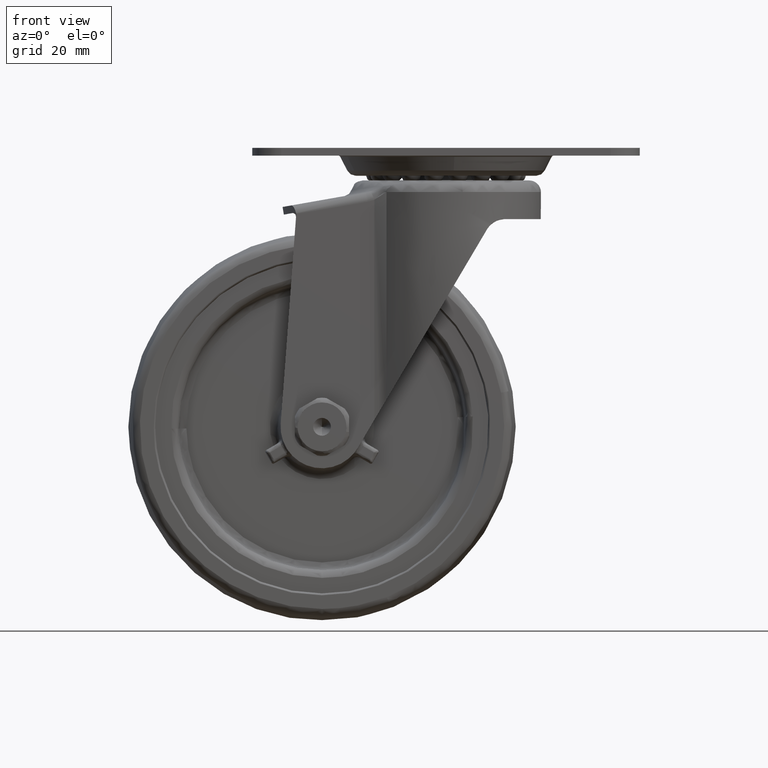
[diagram: clean part render]
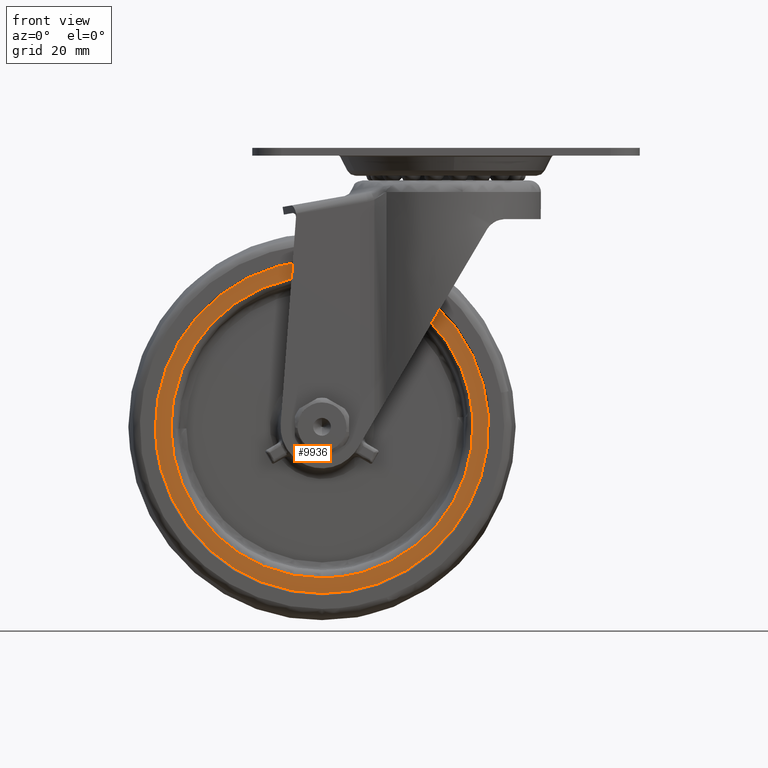
[diagram: same view with one face highlighted and labeled with its STEP entity id]
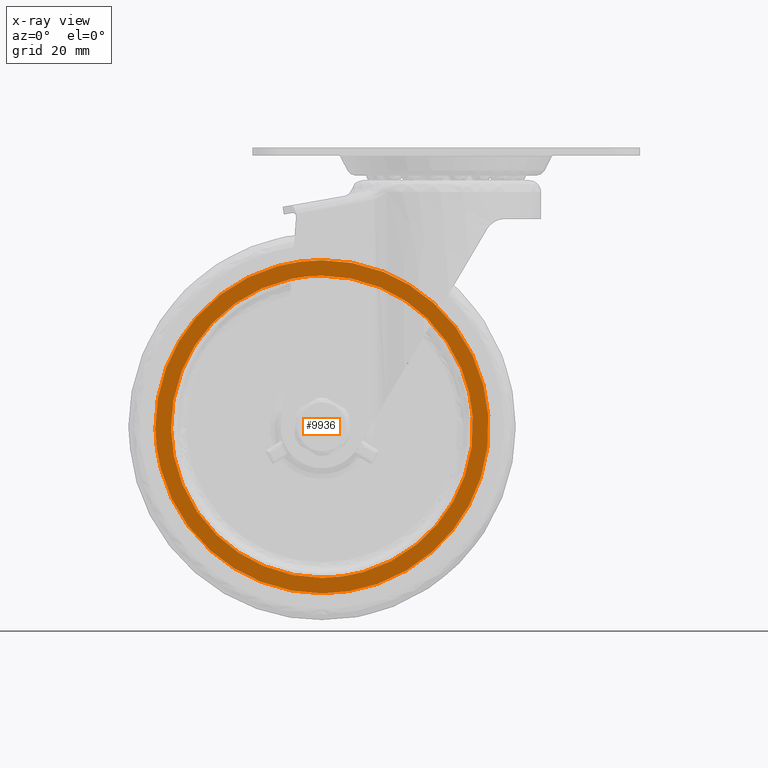
[diagram: x-ray of the same camera — body ghosted, the highlighted face saturated]
A machine part, front view. The second image highlights one B-rep face of the part: STEP entity #9936.
The next image is the same camera in x-ray: the body ghosted, the highlighted face saturated — about 0% of this face is hidden behind the body in this view.
In plain terms, the highlighted face is a freeform B-spline surface patch.
Its self-contained STEP definition (entity closure, byte-faithful):
#2966=CARTESIAN_POINT('',(10.895323975137750,-13.000000010104170,-67.001470182243978));
#2967=VERTEX_POINT('',#2966);
#2981=CARTESIAN_POINT('',(-32.0,-13.0,-113.0));
#2982=VERTEX_POINT('',#2981);
#2983=CARTESIAN_POINT('',(10.895323975137751,-13.000000010104177,-67.001470182243978));
#2984=CARTESIAN_POINT('',(10.999999999999996,-12.999999999999996,-68.498908017375371));
#2985=CARTESIAN_POINT('',(11.0,-13.0,-70.0));
#2986=CARTESIAN_POINT('',(10.999999999999996,-13.000000000000002,-113.0));
#2987=CARTESIAN_POINT('',(-32.0,-13.0,-113.0));
#2995=(BOUNDED_CURVE()B_SPLINE_CURVE(2,(#2983,#2984,#2985,#2986,#2987),.UNSPECIFIED.,.F.,.U.)B_SPLINE_CURVE_WITH_KNOTS((3,2,3),(0.237833686535038,0.250000000000000,0.500000000000000),.UNSPECIFIED.)CURVE()GEOMETRIC_REPRESENTATION_ITEM()RATIONAL_B_SPLINE_CURVE((0.972879876386863,0.985746277152616,1.0,0.707106781186548,1.0))REPRESENTATION_ITEM(''));
#2996=EDGE_CURVE('',#2967,#2982,#2995,.T.);
#2998=CARTESIAN_POINT('',(-74.996604900763671,-13.000000010046300,-70.540339715017154));
#2999=VERTEX_POINT('',#2998);
#3000=CARTESIAN_POINT('',(-32.0,-13.0,-113.0));
#3001=CARTESIAN_POINT('',(-74.463012985949334,-13.000000000000002,-113.0));
#3002=CARTESIAN_POINT('',(-74.996604900763671,-13.000000010046291,-70.540339715017154));
#3010=(BOUNDED_CURVE()B_SPLINE_CURVE(2,(#3000,#3001,#3002),.UNSPECIFIED.,.F.,.U.)B_SPLINE_CURVE_WITH_KNOTS((3,3),(0.500000000000000,0.747784295921458),.UNSPECIFIED.)CURVE()GEOMETRIC_REPRESENTATION_ITEM()RATIONAL_B_SPLINE_CURVE((1.0,0.709702639984556,0.994854295643391))REPRESENTATION_ITEM(''));
#3011=EDGE_CURVE('',#2982,#2999,#3010,.T.);
#3098=CARTESIAN_POINT('',(-32.0,-13.0,-27.000000000000011));
#3099=VERTEX_POINT('',#3098);
#3100=CARTESIAN_POINT('',(-74.996604900763671,-13.000000010046300,-70.540339715017154));
#3101=CARTESIAN_POINT('',(-75.0,-13.000000000000002,-70.270180523684260));
#3102=CARTESIAN_POINT('',(-75.0,-13.0,-70.0));
#3103=CARTESIAN_POINT('',(-75.000000000000014,-13.000000000000002,-27.000000000000011));
#3104=CARTESIAN_POINT('',(-32.0,-13.0,-27.000000000000011));
#3112=(BOUNDED_CURVE()B_SPLINE_CURVE(2,(#3100,#3101,#3102,#3103,#3104),.UNSPECIFIED.,.F.,.U.)B_SPLINE_CURVE_WITH_KNOTS((3,2,3),(0.747784295921458,0.750000000000000,1.0),.UNSPECIFIED.)CURVE()GEOMETRIC_REPRESENTATION_ITEM()RATIONAL_B_SPLINE_CURVE((0.994854295643391,0.997404141201991,1.0,0.707106781186548,1.0))REPRESENTATION_ITEM(''));
#3113=EDGE_CURVE('',#2999,#3099,#3112,.T.);
#3115=CARTESIAN_POINT('',(-32.0,-13.0,-27.000000000000011));
#3116=CARTESIAN_POINT('',(8.099084432442146,-13.000000000000002,-27.000000000000011));
#3117=CARTESIAN_POINT('',(10.895323975137751,-13.000000010104177,-67.001470182243978));
#3125=(BOUNDED_CURVE()B_SPLINE_CURVE(2,(#3115,#3116,#3117),.UNSPECIFIED.,.F.,.U.)B_SPLINE_CURVE_WITH_KNOTS((3,3),(0.0,0.237833686535038),.UNSPECIFIED.)CURVE()GEOMETRIC_REPRESENTATION_ITEM()RATIONAL_B_SPLINE_CURVE((1.0,0.721360504033932,0.972879876386863))REPRESENTATION_ITEM(''));
#3126=EDGE_CURVE('',#3099,#2967,#3125,.T.);
#3161=CARTESIAN_POINT('',(6.904459743385303,-13.0,-67.280445237717473));
#3162=VERTEX_POINT('',#3161);
#3163=CARTESIAN_POINT('',(-32.0,-13.0,-108.999397000000000));
#3164=VERTEX_POINT('',#3163);
#3165=CARTESIAN_POINT('',(6.904459743385303,-12.999999999999996,-67.280445237717473));
#3166=CARTESIAN_POINT('',(6.999396999999997,-13.000000000000002,-68.638565530792590));
#3167=CARTESIAN_POINT('',(6.999396999999997,-13.0,-70.0));
#3168=CARTESIAN_POINT('',(6.999396999999997,-13.0,-108.999397000000000));
#3169=CARTESIAN_POINT('',(-32.0,-13.0,-108.999397000000000));
#3177=(BOUNDED_CURVE()B_SPLINE_CURVE(2,(#3165,#3166,#3167,#3168,#3169),.UNSPECIFIED.,.F.,.U.)B_SPLINE_CURVE_WITH_KNOTS((3,2,3),(0.237833686532575,0.250000000000000,0.500000000000000),.UNSPECIFIED.)CURVE()GEOMETRIC_REPRESENTATION_ITEM()RATIONAL_B_SPLINE_CURVE((0.972879876381653,0.985746277149730,1.0,0.707106781186547,1.0))REPRESENTATION_ITEM(''));
#3178=EDGE_CURVE('',#3162,#3164,#3177,.T.);
#3197=CARTESIAN_POINT('',(-70.996317769842847,-13.0,-70.490067978281729));
#3198=VERTEX_POINT('',#3197);
#3212=CARTESIAN_POINT('',(-32.0,-13.0,-108.999397000000000));
#3213=CARTESIAN_POINT('',(-70.512369796346476,-13.000000000000002,-108.999396999999990));
#3214=CARTESIAN_POINT('',(-70.996317769842847,-13.000000000000002,-70.490067978281729));
#3222=(BOUNDED_CURVE()B_SPLINE_CURVE(2,(#3212,#3213,#3214),.UNSPECIFIED.,.F.,.U.)B_SPLINE_CURVE_WITH_KNOTS((3,3),(0.500000000000000,0.747784295920153),.UNSPECIFIED.)CURVE()GEOMETRIC_REPRESENTATION_ITEM()RATIONAL_B_SPLINE_CURVE((1.0,0.709702639986086,0.994854295640386))REPRESENTATION_ITEM(''));
#3223=EDGE_CURVE('',#3164,#3198,#3222,.T.);
#3251=CARTESIAN_POINT('',(-32.0,-13.0,-31.000603000000009));
#3252=VERTEX_POINT('',#3251);
#3253=CARTESIAN_POINT('',(-32.0,-13.0,-31.000603000000009));
#3254=CARTESIAN_POINT('',(4.368374723136736,-13.000000000000002,-31.000603000000009));
#3255=CARTESIAN_POINT('',(6.904459743385304,-13.000000000000005,-67.280445237717473));
#3263=(BOUNDED_CURVE()B_SPLINE_CURVE(2,(#3253,#3254,#3255),.UNSPECIFIED.,.F.,.U.)B_SPLINE_CURVE_WITH_KNOTS((3,3),(0.0,0.237833686532575),.UNSPECIFIED.)CURVE()GEOMETRIC_REPRESENTATION_ITEM()RATIONAL_B_SPLINE_CURVE((1.0,0.721360504036817,0.972879876381654))REPRESENTATION_ITEM(''));
#3264=EDGE_CURVE('',#3252,#3162,#3263,.T.);
#3266=CARTESIAN_POINT('',(-70.996317769842847,-13.000000000000004,-70.490067978281729));
#3267=CARTESIAN_POINT('',(-70.999396999999988,-13.000000000000005,-70.245043663047696));
#3268=CARTESIAN_POINT('',(-70.999396999999988,-13.0,-70.0));
#3269=CARTESIAN_POINT('',(-70.999397000000002,-13.0,-31.000603000000016));
#3270=CARTESIAN_POINT('',(-32.0,-13.0,-31.000603000000009));
#3278=(BOUNDED_CURVE()B_SPLINE_CURVE(2,(#3266,#3267,#3268,#3269,#3270),.UNSPECIFIED.,.F.,.U.)B_SPLINE_CURVE_WITH_KNOTS((3,2,3),(0.747784295920154,0.750000000000000,1.0),.UNSPECIFIED.)CURVE()GEOMETRIC_REPRESENTATION_ITEM()RATIONAL_B_SPLINE_CURVE((0.994854295640388,0.997404141200463,1.0,0.707106781186547,1.0))REPRESENTATION_ITEM(''));
#3279=EDGE_CURVE('',#3198,#3252,#3278,.T.);
#9919=CARTESIAN_POINT('',(-79.291890174006681,-13.0,-117.295699833315300));
#9920=CARTESIAN_POINT('',(-79.291890174006681,-13.0,-22.704297859984958));
#9921=CARTESIAN_POINT('',(15.290383177797709,-13.0,-117.295699833315300));
#9922=CARTESIAN_POINT('',(15.290383177797709,-13.0,-22.704297859984958));
#9923=B_SPLINE_SURFACE_WITH_KNOTS('',1,1,((#9919,#9921),(#9920,#9922)),.UNSPECIFIED.,.F.,.F.,.U.,(2,2),(2,2),(0.0,94.591401973330363),(0.0,94.582273351804389),.UNSPECIFIED.);
#9924=ORIENTED_EDGE('',*,*,#3113,.F.);
#9925=ORIENTED_EDGE('',*,*,#3011,.F.);
#9926=ORIENTED_EDGE('',*,*,#2996,.F.);
#9927=ORIENTED_EDGE('',*,*,#3126,.F.);
#9928=EDGE_LOOP('',(#9924,#9925,#9926,#9927));
#9929=FACE_OUTER_BOUND('',#9928,.T.);
#9930=ORIENTED_EDGE('',*,*,#3223,.T.);
#9931=ORIENTED_EDGE('',*,*,#3279,.T.);
#9932=ORIENTED_EDGE('',*,*,#3264,.T.);
#9933=ORIENTED_EDGE('',*,*,#3178,.T.);
#9934=EDGE_LOOP('',(#9930,#9931,#9932,#9933));
#9935=FACE_BOUND('',#9934,.T.);
#9936=ADVANCED_FACE('',(#9929,#9935),#9923,.F.);